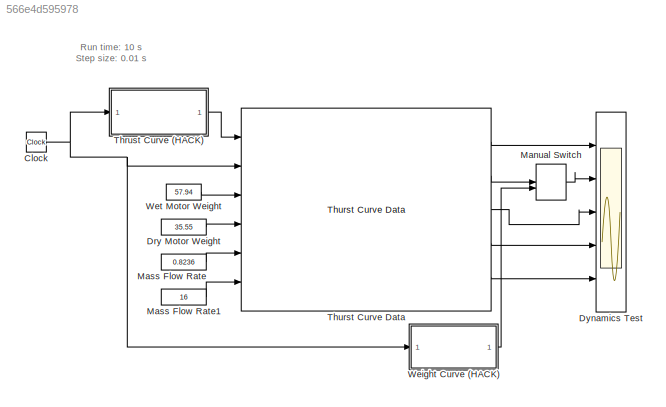
MODEL slx_566e4d595978
KIND model
BLOCK [Clock] Clock
BLOCK [Constant] Dry Motor Weight
  Value = 35.55
BLOCK [Scope] Dynamics Test
  DataFormat = StructureWithTime
  Floating = off
  NumInputPorts = 5
  Ports = [5]
  SampleTime = 0
  SaveName = ScopeData1
  ShowLegends = off
  YMax = 2400~5~5~5~5
  YMin = 0~-5~-5~-5~-5
BLOCK [ManualSwitch] Manual Switch
BLOCK [Constant] Mass Flow Rate
  Value = 0.8236
BLOCK [Constant] Mass Flow Rate1
  Value = 16
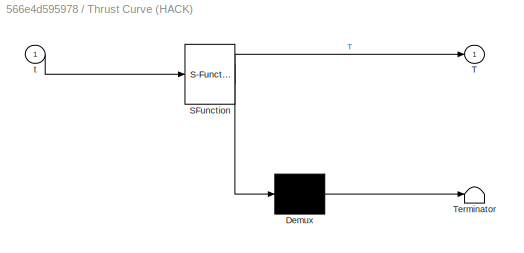
BLOCK [SubSystem] Thrust Curve (HACK)
  ErrorFcn = Stateflow.Translate.translate
  PermitHierarchicalResolution = ExplicitOnly
  Ports = [1, 1]
  RequestExecContextInheritance = off
  SFBlockType = MATLAB Function
  TreatAsAtomicUnit = on
BLOCK [Demux] Thrust Curve (HACK)/ Demux 
  Outputs = 1
  Ports = [1, 1]
BLOCK [S-Function] Thrust Curve (HACK)/ SFunction 
  EnableBusSupport = on
  FunctionName = sf_sfun
  PortCounts = [1 2]
  Ports = [1, 2]
  Tag = Stateflow S-Function DynamicWeightCalculation_TestModel 2
BLOCK [Terminator] Thrust Curve (HACK)/ Terminator 
BLOCK [Outport] Thrust Curve (HACK)/T
  IconDisplay = Port number
BLOCK [Inport] Thrust Curve (HACK)/t
  IconDisplay = Port number
BLOCK [Reference] Thurst Curve Data  REF=rocket_dynamic_data_library/Thurst Curve Data  (lib defined in slx_58be5b8ac4f4)
  Ports = [6, 5]
  SourceBlock = rocket_dynamic_data_library/Thurst Curve Data
  SourceType = SubSystem
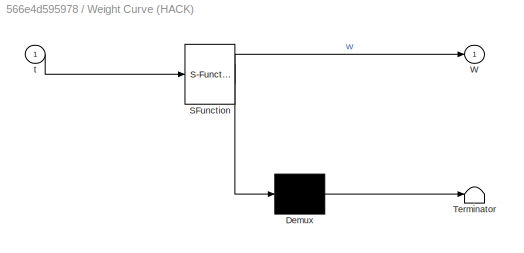
BLOCK [SubSystem] Weight Curve (HACK)
  ErrorFcn = Stateflow.Translate.translate
  PermitHierarchicalResolution = ExplicitOnly
  Ports = [1, 1]
  RequestExecContextInheritance = off
  SFBlockType = MATLAB Function
  TreatAsAtomicUnit = on
BLOCK [Demux] Weight Curve (HACK)/ Demux 
  Outputs = 1
  Ports = [1, 1]
BLOCK [S-Function] Weight Curve (HACK)/ SFunction 
  EnableBusSupport = on
  FunctionName = sf_sfun
  PortCounts = [1 2]
  Ports = [1, 2]
  Tag = Stateflow S-Function DynamicWeightCalculation_TestModel 1
BLOCK [Terminator] Weight Curve (HACK)/ Terminator 
BLOCK [Outport] Weight Curve (HACK)/W
  IconDisplay = Port number
BLOCK [Inport] Weight Curve (HACK)/t
  IconDisplay = Port number
BLOCK [Constant] Wet Motor Weight
  Value = 57.94
ANNOTATION (root): Run time: 10 s Step size: 0.01 s
NET Clock:1 -> Thrust Curve (HACK):1, Thurst Curve Data:2, Weight Curve (HACK):1
LINE Dry Motor Weight:1 -> Thurst Curve Data:4
LINE Manual Switch:1 -> Dynamics Test:2
LINE Mass Flow Rate1:1 -> Thurst Curve Data:6
LINE Mass Flow Rate:1 -> Thurst Curve Data:5
LINE Thrust Curve (HACK):1 -> Thurst Curve Data:1
LINE Thurst Curve Data:1 -> Dynamics Test:1
LINE Thurst Curve Data:2 -> Manual Switch:1
LINE Thurst Curve Data:3 -> Dynamics Test:3
LINE Thurst Curve Data:4 -> Dynamics Test:4
LINE Thurst Curve Data:5 -> Dynamics Test:5
LINE Weight Curve (HACK):1 -> Manual Switch:2
LINE Wet Motor Weight:1 -> Thurst Curve Data:3
note: NET lines group one-source signal fan-out (src -> all destinations, sorted); 1:1 wires keep LINE
